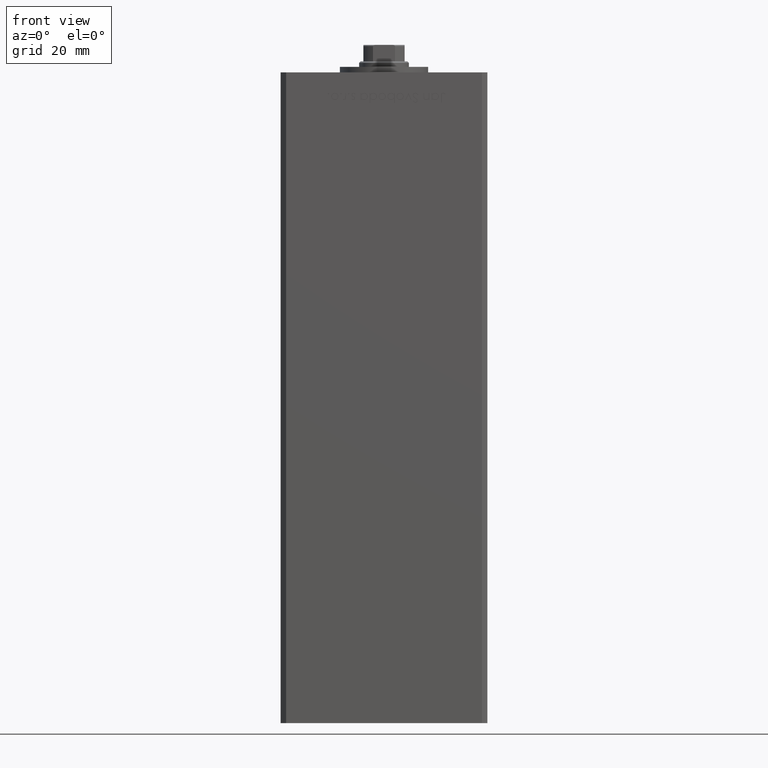
[diagram: clean part render]
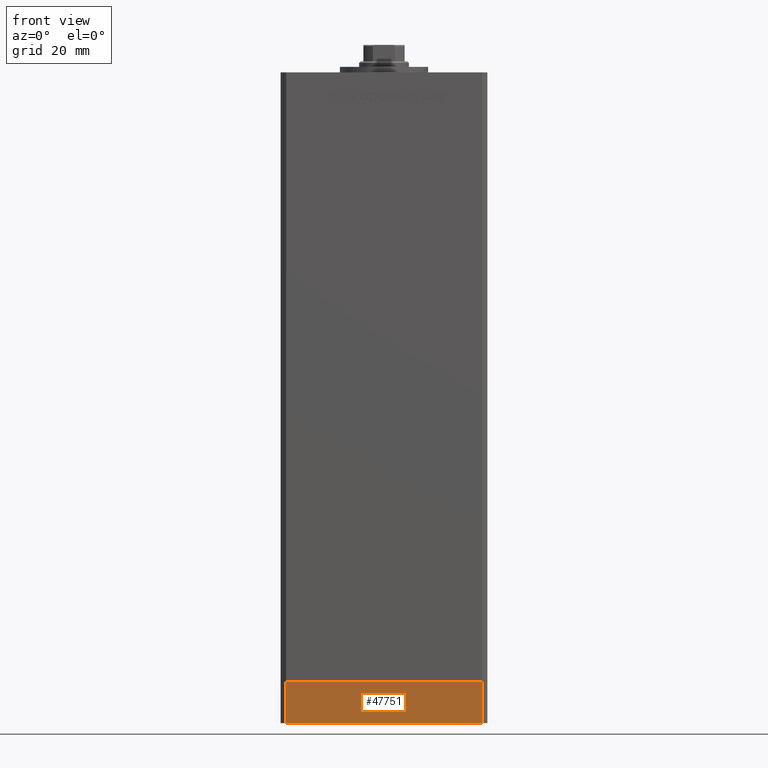
[diagram: same view with one face highlighted and labeled with its STEP entity id]
A machine part, front view. The second image highlights one B-rep face of the part: STEP entity #47751.
In plain terms, the highlighted planar face has unit normal (-0, -1, -0).
Its self-contained STEP definition (entity closure, byte-faithful):
#208 = EDGE_CURVE ( 'NONE', #35054, #8539, #15321, .T. ) ;
#740 = VECTOR ( 'NONE', #6904, 1000.000000000000000 ) ;
#2643 = DIRECTION ( 'NONE',  ( 1.000000000000000000, 9.773090005503140331E-17, 0.000000000000000000 ) ) ;
#3996 = CARTESIAN_POINT ( 'NONE',  ( -35.49999999999998579, -32.50000000000001421, -15.00000000000000000 ) ) ;
#4380 = VECTOR ( 'NONE', #43271, 1000.000000000000000 ) ;
#6904 = DIRECTION ( 'NONE',  ( 1.000000000000000000, 9.773090005503140331E-17, 0.000000000000000000 ) ) ;
#7335 = ORIENTED_EDGE ( 'NONE', *, *, #208, .F. ) ;
#8539 = VERTEX_POINT ( 'NONE', #19139 ) ;
#9842 = EDGE_CURVE ( 'NONE', #28206, #8539, #19257, .T. ) ;
#11670 = ORIENTED_EDGE ( 'NONE', *, *, #9842, .T. ) ;
#14555 = EDGE_CURVE ( 'NONE', #30237, #28206, #40136, .T. ) ;
#15068 = CARTESIAN_POINT ( 'NONE',  ( -35.49999999999998579, -32.50000000000001421, 0.000000000000000000 ) ) ;
#15136 = LINE ( 'NONE', #27259, #33134 ) ;
#15321 = LINE ( 'NONE', #15068, #740 ) ;
#19139 = CARTESIAN_POINT ( 'NONE',  ( 35.50000000000000711, -32.50000000000000711, 0.000000000000000000 ) ) ;
#19257 = LINE ( 'NONE', #42751, #4380 ) ;
#19303 = EDGE_CURVE ( 'NONE', #30237, #35054, #15136, .T. ) ;
#19505 = CARTESIAN_POINT ( 'NONE',  ( -35.49999999999998579, -32.50000000000001421, -15.00000000000000000 ) ) ;
#20084 = DIRECTION ( 'NONE',  ( 1.000000000000000000, 9.773090005503140331E-17, 0.000000000000000000 ) ) ;
#20731 = AXIS2_PLACEMENT_3D ( 'NONE', #19505, #39293, #2643 ) ;
#22538 = ORIENTED_EDGE ( 'NONE', *, *, #14555, .T. ) ;
#27259 = CARTESIAN_POINT ( 'NONE',  ( -35.49999999999998579, -32.50000000000001421, -15.00000000000000000 ) ) ;
#27674 = PLANE ( 'NONE',  #20731 ) ;
#28206 = VERTEX_POINT ( 'NONE', #45393 ) ;
#30237 = VERTEX_POINT ( 'NONE', #35764 ) ;
#31212 = CARTESIAN_POINT ( 'NONE',  ( -35.49999999999998579, -32.50000000000001421, 0.000000000000000000 ) ) ;
#31299 = VECTOR ( 'NONE', #20084, 1000.000000000000000 ) ;
#33134 = VECTOR ( 'NONE', #43370, 1000.000000000000000 ) ;
#35054 = VERTEX_POINT ( 'NONE', #31212 ) ;
#35764 = CARTESIAN_POINT ( 'NONE',  ( -35.49999999999998579, -32.50000000000001421, -15.00000000000000000 ) ) ;
#39293 = DIRECTION ( 'NONE',  ( 9.773090005503140331E-17, -1.000000000000000000, 0.000000000000000000 ) ) ;
#39810 = FACE_OUTER_BOUND ( 'NONE', #45805, .T. ) ;
#40136 = LINE ( 'NONE', #3996, #31299 ) ;
#42751 = CARTESIAN_POINT ( 'NONE',  ( 35.50000000000000711, -32.50000000000000711, -15.00000000000000000 ) ) ;
#43271 = DIRECTION ( 'NONE',  ( 0.000000000000000000, 0.000000000000000000, 1.000000000000000000 ) ) ;
#43370 = DIRECTION ( 'NONE',  ( 0.000000000000000000, 0.000000000000000000, 1.000000000000000000 ) ) ;
#45393 = CARTESIAN_POINT ( 'NONE',  ( 35.50000000000000711, -32.50000000000000711, -15.00000000000000000 ) ) ;
#45805 = EDGE_LOOP ( 'NONE', ( #7335, #49960, #22538, #11670 ) ) ;
#47751 = ADVANCED_FACE ( 'NONE', ( #39810 ), #27674, .T. ) ;
#49960 = ORIENTED_EDGE ( 'NONE', *, *, #19303, .F. ) ;